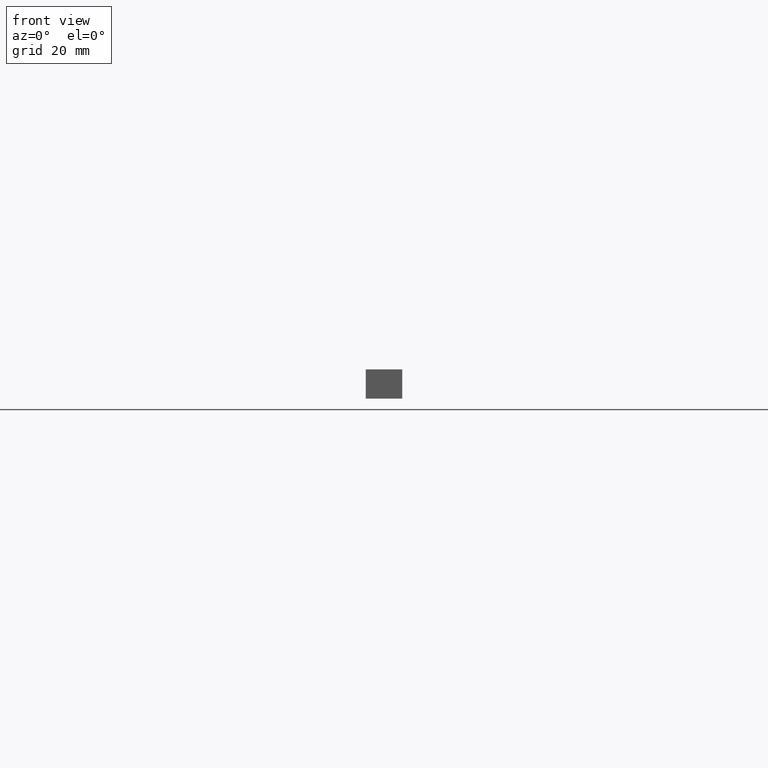
[diagram: clean part render]
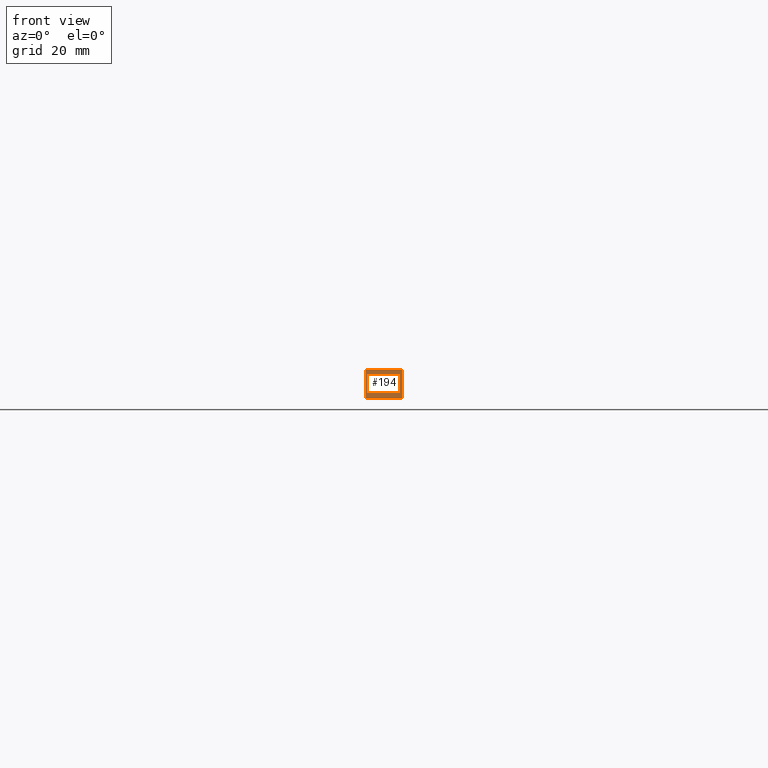
[diagram: same view with one face highlighted and labeled with its STEP entity id]
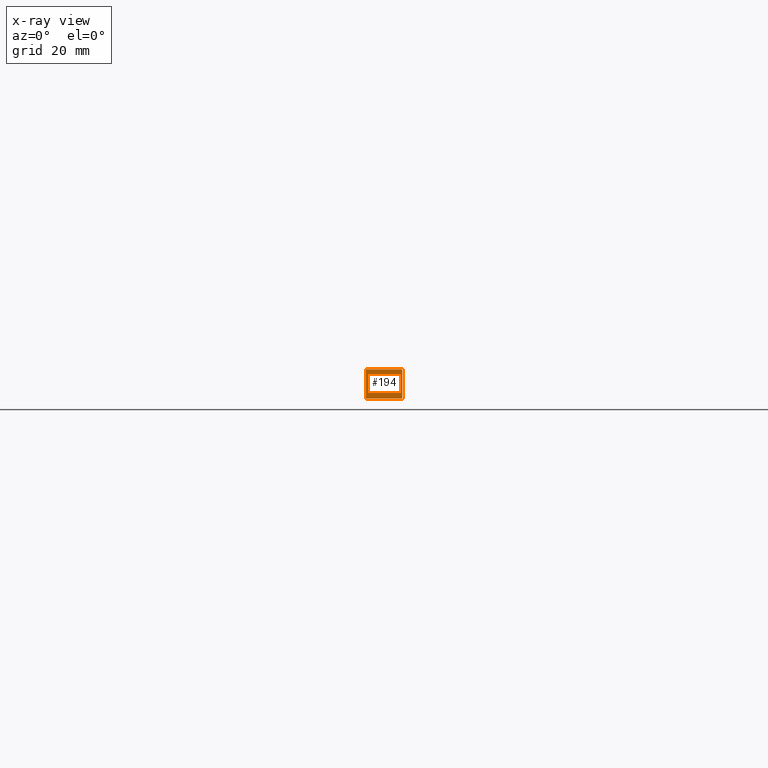
[diagram: x-ray of the same camera — body ghosted, the highlighted face saturated]
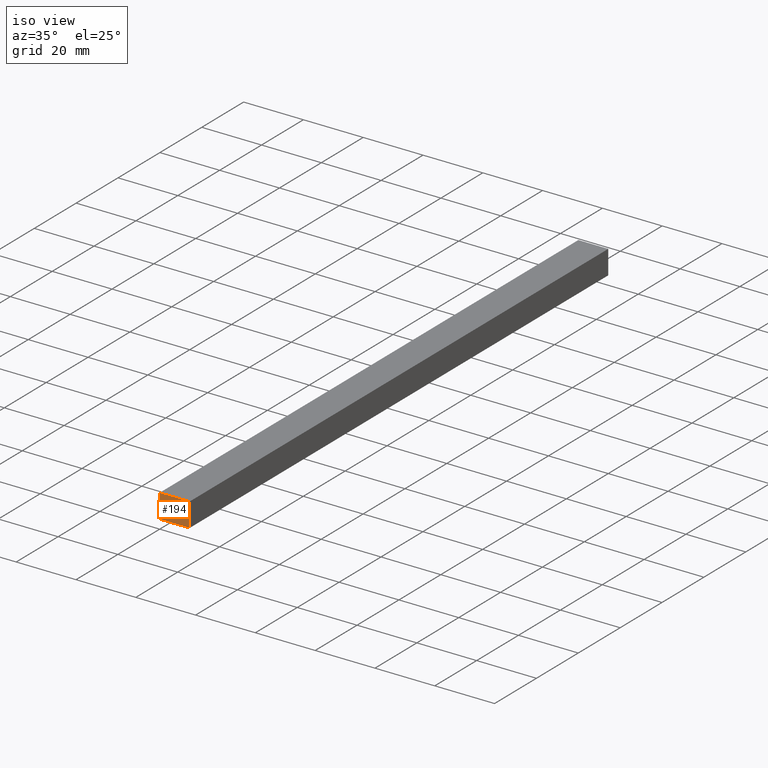
[diagram: same view with one face highlighted and labeled with its STEP entity id]
A machine part, front view. The second image highlights one B-rep face of the part: STEP entity #194.
The next image is the same camera in x-ray: the body ghosted, the highlighted face saturated — about 0% of this face is hidden behind the body in this view.
A second angle (iso view) of the same face is appended — the face is thin or edge-on in the first view.
In plain terms, the highlighted planar face has unit normal (0, 1, 0).
Its self-contained STEP definition (entity closure, byte-faithful):
#6 = LINE ( 'NONE', #137, #202 ) ;
#11 = CARTESIAN_POINT ( 'NONE',  ( 0.0000000000000000000, 0.0000000000000000000, 0.0000000000000000000 ) ) ;
#28 = VERTEX_POINT ( 'NONE', #95 ) ;
#37 = AXIS2_PLACEMENT_3D ( 'NONE', #233, #181, #43 ) ;
#39 = EDGE_CURVE ( 'NONE', #228, #28, #154, .T. ) ;
#40 = VERTEX_POINT ( 'NONE', #151 ) ;
#43 = DIRECTION ( 'NONE',  ( 1.000000000000000000, 0.0000000000000000000, 0.0000000000000000000 ) ) ;
#44 = ORIENTED_EDGE ( 'NONE', *, *, #124, .T. ) ;
#47 = PLANE ( 'NONE',  #37 ) ;
#49 = EDGE_CURVE ( 'NONE', #40, #143, #54, .T. ) ;
#54 = LINE ( 'NONE', #120, #66 ) ;
#60 = ORIENTED_EDGE ( 'NONE', *, *, #49, .T. ) ;
#61 = ORIENTED_EDGE ( 'NONE', *, *, #64, .T. ) ;
#64 = EDGE_CURVE ( 'NONE', #143, #228, #6, .T. ) ;
#66 = VECTOR ( 'NONE', #118, 1000.000000000000000 ) ;
#95 = CARTESIAN_POINT ( 'NONE',  ( 10.00000000000000000, 0.0000000000000000000, 8.000000000000000000 ) ) ;
#104 = DIRECTION ( 'NONE',  ( -1.000000000000000000, -0.0000000000000000000, -0.0000000000000000000 ) ) ;
#106 = DIRECTION ( 'NONE',  ( -0.0000000000000000000, -0.0000000000000000000, 1.000000000000000000 ) ) ;
#108 = VECTOR ( 'NONE', #106, 1000.000000000000000 ) ;
#113 = FACE_OUTER_BOUND ( 'NONE', #149, .T. ) ;
#118 = DIRECTION ( 'NONE',  ( -0.0000000000000000000, -0.0000000000000000000, -1.000000000000000000 ) ) ;
#120 = CARTESIAN_POINT ( 'NONE',  ( 0.0000000000000000000, 0.0000000000000000000, 0.0000000000000000000 ) ) ;
#121 = DIRECTION ( 'NONE',  ( 1.000000000000000000, -0.0000000000000000000, -0.0000000000000000000 ) ) ;
#124 = EDGE_CURVE ( 'NONE', #28, #40, #223, .T. ) ;
#137 = CARTESIAN_POINT ( 'NONE',  ( 0.0000000000000000000, 0.0000000000000000000, 0.0000000000000000000 ) ) ;
#143 = VERTEX_POINT ( 'NONE', #11 ) ;
#149 = EDGE_LOOP ( 'NONE', ( #61, #204, #44, #60 ) ) ;
#151 = CARTESIAN_POINT ( 'NONE',  ( 0.0000000000000000000, 0.0000000000000000000, 8.000000000000000000 ) ) ;
#153 = CARTESIAN_POINT ( 'NONE',  ( 10.00000000000000000, 0.0000000000000000000, 0.0000000000000000000 ) ) ;
#154 = LINE ( 'NONE', #153, #108 ) ;
#181 = DIRECTION ( 'NONE',  ( -0.0000000000000000000, 1.000000000000000000, 0.0000000000000000000 ) ) ;
#186 = VECTOR ( 'NONE', #104, 1000.000000000000000 ) ;
#194 = ADVANCED_FACE ( 'NONE', ( #113 ), #47, .F. ) ;
#196 = CARTESIAN_POINT ( 'NONE',  ( 10.00000000000000000, 0.0000000000000000000, 0.0000000000000000000 ) ) ;
#202 = VECTOR ( 'NONE', #121, 1000.000000000000000 ) ;
#204 = ORIENTED_EDGE ( 'NONE', *, *, #39, .T. ) ;
#214 = CARTESIAN_POINT ( 'NONE',  ( 0.0000000000000000000, 0.0000000000000000000, 8.000000000000000000 ) ) ;
#223 = LINE ( 'NONE', #214, #186 ) ;
#228 = VERTEX_POINT ( 'NONE', #196 ) ;
#233 = CARTESIAN_POINT ( 'NONE',  ( 0.0000000000000000000, 0.0000000000000000000, 0.0000000000000000000 ) ) ;